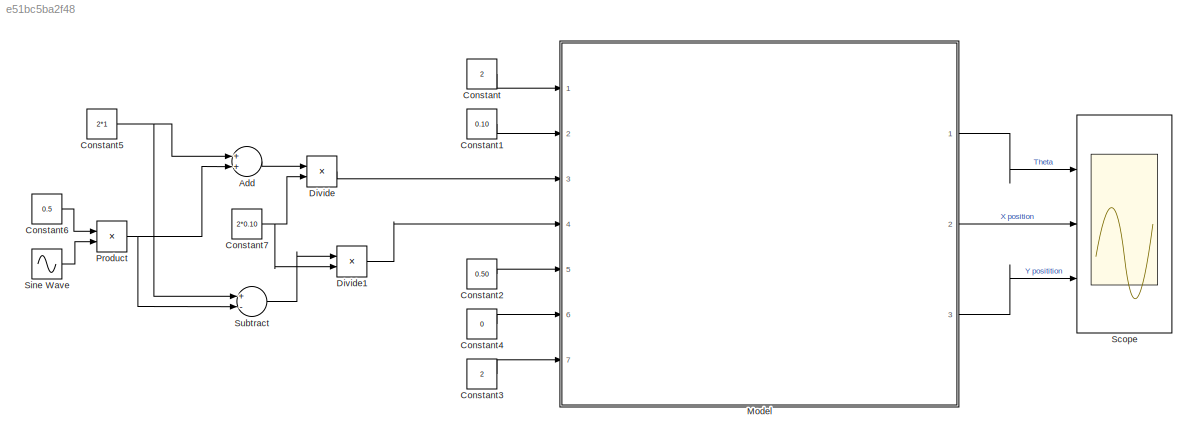
MODEL slx_e51bc5ba2f48
KIND model
CONFIG AbsTol = auto
CONFIG EnableMultiTasking = off
CONFIG FixedStep = auto
CONFIG MaxStep = auto
CONFIG MinStep = auto
CONFIG RelTol = 1e-3
CONFIG SampleTimeConstraint = Unconstrained
CONFIG Solver = VariableStepAuto
CONFIG SolverName = VariableStepAuto
CONFIG StartTime = 0.0
CONFIG StopTime = 10
BLOCK [Sum] Add
  InputSameDT = off
  OutDataTypeStr = Inherit: Inherit via internal rule
  Ports = [2, 1]
  SaturateOnIntegerOverflow = off
BLOCK [Constant] Constant
  Value = 2
BLOCK [Constant] Constant1
  Value = 0.10
BLOCK [Constant] Constant2
  Value = 0.50
BLOCK [Constant] Constant3
  Value = 2
BLOCK [Constant] Constant4
  Value = 0
BLOCK [Constant] Constant5
  Value = 2*1
BLOCK [Constant] Constant6
  Value = 0.5
BLOCK [Constant] Constant7
  Value = 2*0.10
BLOCK [Product] Divide
  InputSameDT = off
  Inputs = */
  OutDataTypeStr = Inherit: Inherit via internal rule
  Ports = [2, 1]
  RndMeth = Floor
  SaturateOnIntegerOverflow = off
BLOCK [Product] Divide1
  InputSameDT = off
  Inputs = */
  OutDataTypeStr = Inherit: Inherit via internal rule
  Ports = [2, 1]
  RndMeth = Floor
  SaturateOnIntegerOverflow = off
BLOCK [ModelReference] Model
  ModelNameDialog = Differential_Drive_Robot_Dynamics.slx
  ModelReferenceVersion = 1.3
  Ports = [7, 3]
  Variant = off
BLOCK [Product] Product
  InputSameDT = off
  OutDataTypeStr = Inherit: Inherit via internal rule
  Ports = [2, 1]
  RndMeth = Floor
  SaturateOnIntegerOverflow = off
BLOCK [Scope] Scope
  NumInputPorts = 3
  Ports = [3]
  ScopeSpecificationString = Simulink.scopes.TimeScopeBlockCfg('CurrentConfiguration', extmgr.ConfigurationSet(extmgr.Configuration('Core','General UI',true),extmgr.Configuration('Core','Source UI',true),extmgr.Configuration('Sources','WiredSimulink',true),extmgr.Configuration('Visuals','Time Domain',true,'SerializedDisplays',{struct('MinYLimReal','-1.49991','MaxYLimReal','13.49916','YLabelReal','','MinYLimMag','0.00000','Max...<+1406ch>
BLOCK [Sin] Sine Wave
  Frequency = 100
  Ports = [0, 1]
  SampleTime = 0
BLOCK [Sum] Subtract
  InputSameDT = off
  Inputs = +-
  OutDataTypeStr = Inherit: Inherit via internal rule
  Ports = [2, 1]
  SaturateOnIntegerOverflow = off
LINE Add:1 -> Divide:1
LINE Constant1:1 -> Model:2
LINE Constant2:1 -> Model:5
LINE Constant3:1 -> Model:7
LINE Constant4:1 -> Model:6
NET Constant5:1 -> Add:1, Subtract:1
LINE Constant6:1 -> Product:1
NET Constant7:1 -> Divide1:2, Divide:2
LINE Constant:1 -> Model:1
LINE Divide1:1 -> Model:4
LINE Divide:1 -> Model:3
LINE Model:1 -> Scope:1
LINE Model:2 -> Scope:2
LINE Model:3 -> Scope:3
NET Product:1 -> Add:2, Subtract:2
LINE Sine Wave:1 -> Product:2
LINE Subtract:1 -> Divide1:1
note: NET lines group one-source signal fan-out (src -> all destinations, sorted); 1:1 wires keep LINE
